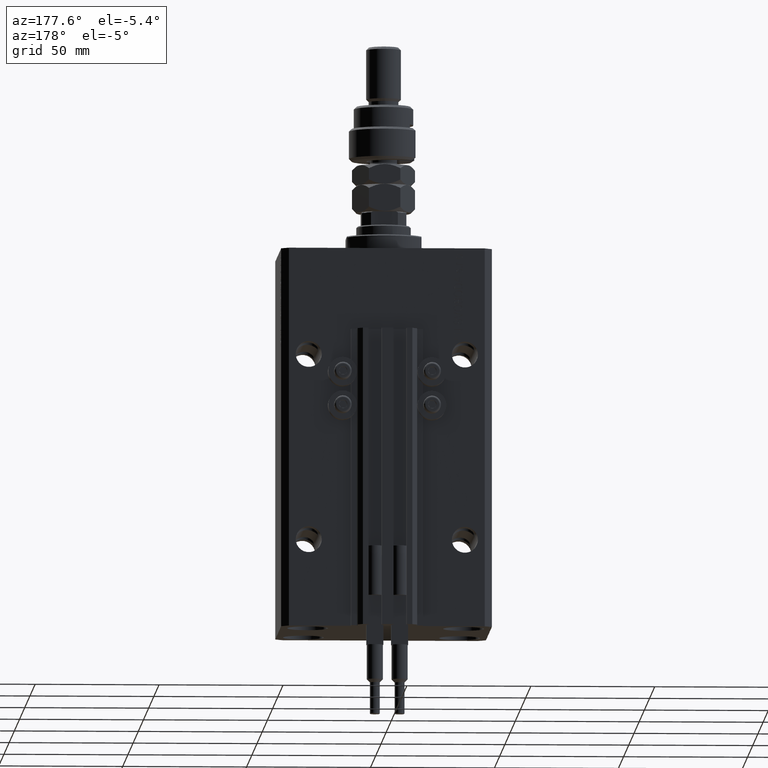
[diagram: clean part render]
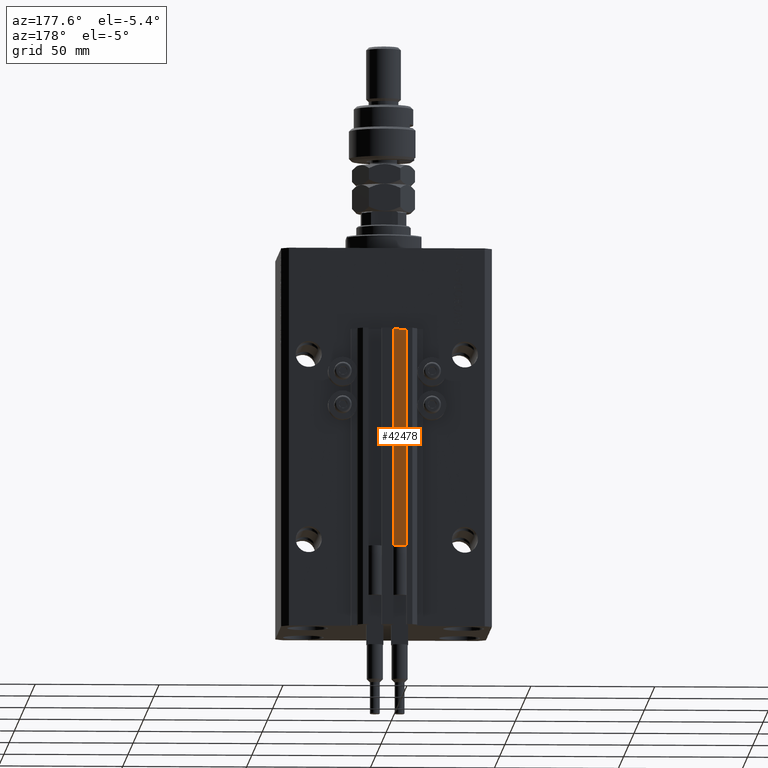
[diagram: same view with one face highlighted and labeled with its STEP entity id]
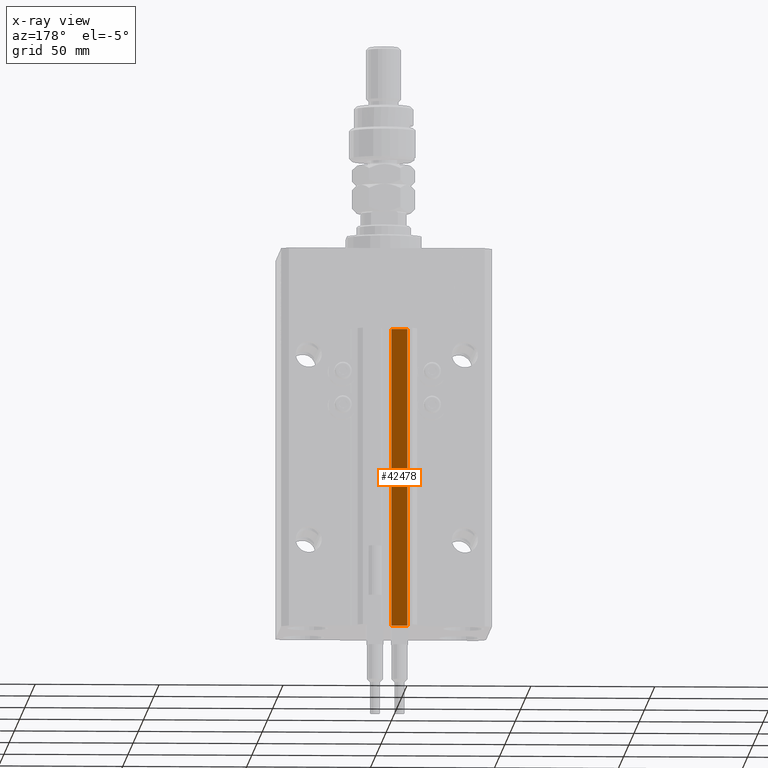
[diagram: x-ray of the same camera — body ghosted, the highlighted face saturated]
A machine part, auxiliary view. The second image highlights one B-rep face of the part: STEP entity #42478.
The next image is the same camera in x-ray: the body ghosted, the highlighted face saturated — about 0% of this face is hidden behind the body in this view.
In plain terms, the highlighted planar face has unit normal (0, 1, 0).
Its self-contained STEP definition (entity closure, byte-faithful):
#605 = EDGE_LOOP ( 'NONE', ( #29420, #33135, #48140, #4581 ) ) ;
#2442 = EDGE_CURVE ( 'NONE', #44917, #39923, #36243, .T. ) ;
#4581 = ORIENTED_EDGE ( 'NONE', *, *, #44886, .T. ) ;
#6139 = PLANE ( 'NONE',  #28586 ) ;
#6793 = EDGE_CURVE ( 'NONE', #44917, #35457, #27000, .T. ) ;
#7557 = CARTESIAN_POINT ( 'NONE',  ( -1.800000000000000933, 33.50000000000000000, -33.00000000000000000 ) ) ;
#7898 = CARTESIAN_POINT ( 'NONE',  ( -1.800000000000000933, 33.50000000000000000, -153.0000000000000000 ) ) ;
#10310 = DIRECTION ( 'NONE',  ( 0.000000000000000000, 0.000000000000000000, 1.000000000000000000 ) ) ;
#11539 = DIRECTION ( 'NONE',  ( 0.000000000000000000, 0.000000000000000000, 1.000000000000000000 ) ) ;
#11830 = DIRECTION ( 'NONE',  ( -1.000000000000000000, 0.000000000000000000, 0.000000000000000000 ) ) ;
#15490 = DIRECTION ( 'NONE',  ( -1.000000000000000000, 0.000000000000000000, 0.000000000000000000 ) ) ;
#18071 = VECTOR ( 'NONE', #15490, 1000.000000000000000 ) ;
#21234 = VECTOR ( 'NONE', #32312, 1000.000000000000000 ) ;
#21910 = VERTEX_POINT ( 'NONE', #42920 ) ;
#26250 = DIRECTION ( 'NONE',  ( 0.000000000000000000, 1.000000000000000000, -0.000000000000000000 ) ) ;
#26512 = CARTESIAN_POINT ( 'NONE',  ( -1.800000000000000933, 33.50000000000000000, -153.0000000000000000 ) ) ;
#27000 = LINE ( 'NONE', #7898, #18071 ) ;
#28586 = AXIS2_PLACEMENT_3D ( 'NONE', #26512, #26250, #10310 ) ;
#29420 = ORIENTED_EDGE ( 'NONE', *, *, #47909, .F. ) ;
#31575 = VECTOR ( 'NONE', #11539, 1000.000000000000000 ) ;
#32312 = DIRECTION ( 'NONE',  ( 0.000000000000000000, 0.000000000000000000, 1.000000000000000000 ) ) ;
#33135 = ORIENTED_EDGE ( 'NONE', *, *, #2442, .F. ) ;
#34577 = CARTESIAN_POINT ( 'NONE',  ( -1.800000000000000933, 33.50000000000000000, -33.00000000000000000 ) ) ;
#35457 = VERTEX_POINT ( 'NONE', #38961 ) ;
#35585 = LINE ( 'NONE', #47135, #31575 ) ;
#35615 = LINE ( 'NONE', #34577, #37544 ) ;
#36243 = LINE ( 'NONE', #40433, #21234 ) ;
#37544 = VECTOR ( 'NONE', #11830, 1000.000000000000000 ) ;
#38961 = CARTESIAN_POINT ( 'NONE',  ( -8.199999999999997513, 33.50000000000000000, -153.0000000000000000 ) ) ;
#39923 = VERTEX_POINT ( 'NONE', #7557 ) ;
#40433 = CARTESIAN_POINT ( 'NONE',  ( -1.800000000000000933, 33.50000000000000000, -153.0000000000000000 ) ) ;
#40799 = CARTESIAN_POINT ( 'NONE',  ( -1.800000000000000933, 33.50000000000000000, -153.0000000000000000 ) ) ;
#42478 = ADVANCED_FACE ( 'NONE', ( #45639 ), #6139, .T. ) ;
#42920 = CARTESIAN_POINT ( 'NONE',  ( -8.199999999999997513, 33.50000000000000000, -33.00000000000000000 ) ) ;
#44886 = EDGE_CURVE ( 'NONE', #35457, #21910, #35585, .T. ) ;
#44917 = VERTEX_POINT ( 'NONE', #40799 ) ;
#45639 = FACE_OUTER_BOUND ( 'NONE', #605, .T. ) ;
#47135 = CARTESIAN_POINT ( 'NONE',  ( -8.199999999999997513, 33.50000000000000000, -153.0000000000000000 ) ) ;
#47909 = EDGE_CURVE ( 'NONE', #39923, #21910, #35615, .T. ) ;
#48140 = ORIENTED_EDGE ( 'NONE', *, *, #6793, .T. ) ;